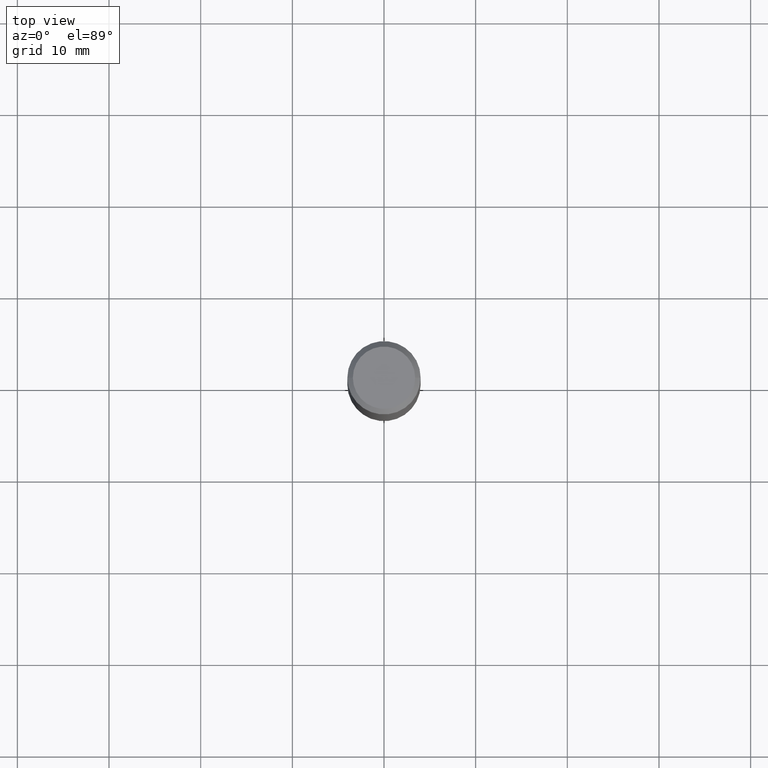
[diagram: clean part render]
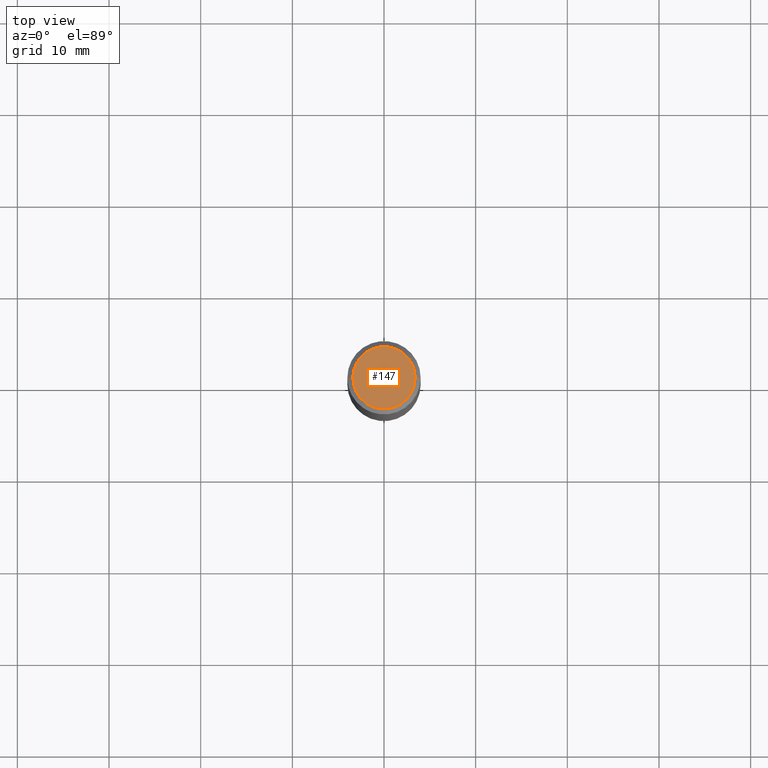
[diagram: same view with one face highlighted and labeled with its STEP entity id]
A machine part, top view. The second image highlights one B-rep face of the part: STEP entity #147.
In plain terms, the highlighted planar face has unit normal (0, -0, -1).
Its self-contained STEP definition (entity closure, byte-faithful):
#10 = CIRCLE ( 'NONE', #226, 0.1338749999999999940 ) ;
#96 = ORIENTED_EDGE ( 'NONE', *, *, #213, .T. ) ;
#116 = PLANE ( 'NONE',  #124 ) ;
#119 = CARTESIAN_POINT ( 'NONE',  ( 0.1338749999999999940, -1.040731925365424925E-15, 4.101342130351393887E-18 ) ) ;
#124 = AXIS2_PLACEMENT_3D ( 'NONE', #416, #490, #158 ) ;
#126 = ORIENTED_EDGE ( 'NONE', *, *, #357, .T. ) ;
#139 = DIRECTION ( 'NONE',  ( 1.000000000000000000, -6.982962677686266711E-15, 4.876170806578254279E-29 ) ) ;
#147 = ADVANCED_FACE ( 'NONE', ( #450 ), #116, .F. ) ;
#158 = DIRECTION ( 'NONE',  ( -1.000000000000000000, 6.982962677686265922E-15, -4.876176775795935793E-29 ) ) ;
#179 = DIRECTION ( 'NONE',  ( -2.445468806185136597E-29, 3.491481338843145583E-15, 1.000000000000000000 ) ) ;
#182 = AXIS2_PLACEMENT_3D ( 'NONE', #374, #179, #254 ) ;
#213 = EDGE_CURVE ( 'NONE', #323, #480, #384, .T. ) ;
#221 = CARTESIAN_POINT ( 'NONE',  ( -1.002970424325033577E-46, 1.431975951230896486E-32, 4.101342130344485961E-18 ) ) ;
#226 = AXIS2_PLACEMENT_3D ( 'NONE', #221, #309, #139 ) ;
#254 = DIRECTION ( 'NONE',  ( 1.000000000000000000, -6.982962677686266711E-15, 4.876170806578254279E-29 ) ) ;
#303 = EDGE_LOOP ( 'NONE', ( #126, #96 ) ) ;
#309 = DIRECTION ( 'NONE',  ( -2.445468806185136597E-29, 3.491481338843145583E-15, 1.000000000000000000 ) ) ;
#323 = VERTEX_POINT ( 'NONE', #119 ) ;
#357 = EDGE_CURVE ( 'NONE', #480, #323, #10, .T. ) ;
#374 = CARTESIAN_POINT ( 'NONE',  ( -1.002970424325033577E-46, 1.431975951230896486E-32, 4.101342130344485961E-18 ) ) ;
#384 = CIRCLE ( 'NONE', #182, 0.1338749999999999940 ) ;
#416 = CARTESIAN_POINT ( 'NONE',  ( -5.014852121625167883E-47, 7.159879756154482429E-33, 2.050671065172242981E-18 ) ) ;
#450 = FACE_OUTER_BOUND ( 'NONE', #303, .T. ) ;
#455 = CARTESIAN_POINT ( 'NONE',  ( -0.1338749999999999940, 9.760872517903331886E-16, 4.101342130337804525E-18 ) ) ;
#480 = VERTEX_POINT ( 'NONE', #455 ) ;
#490 = DIRECTION ( 'NONE',  ( 2.438088387897960049E-29, -3.491481338843145188E-15, -1.000000000000000000 ) ) ;